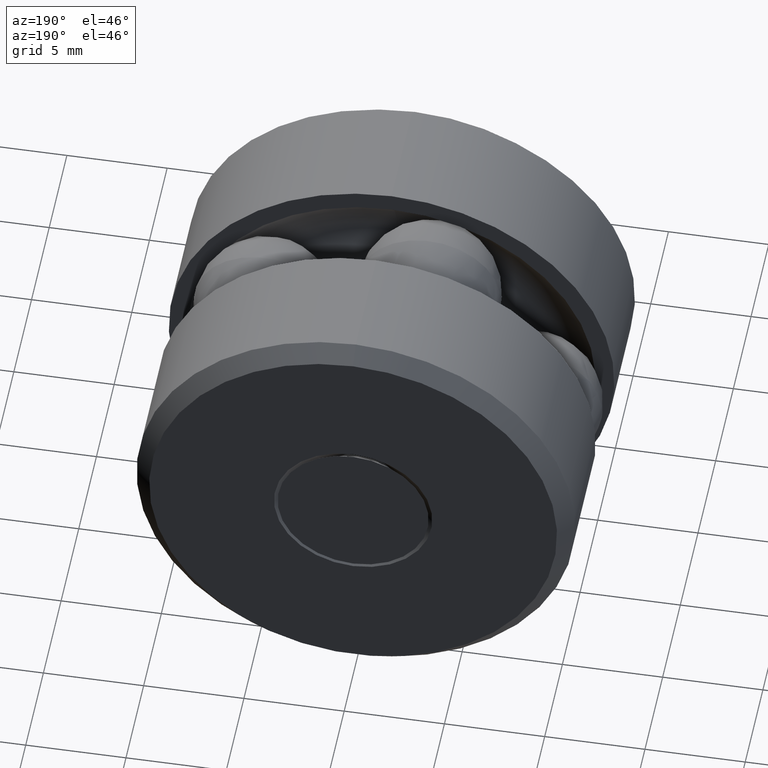
[diagram: clean part render]
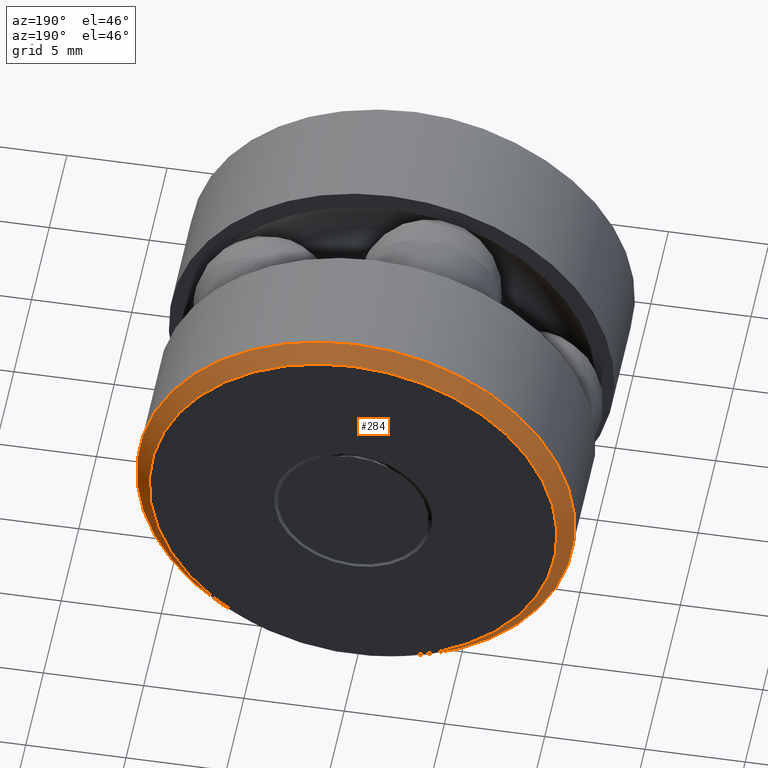
[diagram: same view with one face highlighted and labeled with its STEP entity id]
A machine part, auxiliary view. The second image highlights one B-rep face of the part: STEP entity #284.
In plain terms, the highlighted conical surface has half-angle 45 deg.
Its self-contained STEP definition (entity closure, byte-faithful):
#33 = CARTESIAN_POINT ( 'NONE',  ( 0.0000000000000000000, 0.6574999999999996400, 0.0000000000000000000 ) ) ;
#38 = FACE_OUTER_BOUND ( 'NONE', #103, .T. ) ;
#49 = ORIENTED_EDGE ( 'NONE', *, *, #392, .T. ) ;
#94 = EDGE_LOOP ( 'NONE', ( #455 ) ) ;
#103 = EDGE_LOOP ( 'NONE', ( #49 ) ) ;
#106 = AXIS2_PLACEMENT_3D ( 'NONE', #33, #213, #322 ) ;
#213 = DIRECTION ( 'NONE',  ( -0.0000000000000000000, 1.000000000000000000, -0.0000000000000000000 ) ) ;
#228 = DIRECTION ( 'NONE',  ( 0.0000000000000000000, 0.0000000000000000000, 1.000000000000000000 ) ) ;
#229 = DIRECTION ( 'NONE',  ( -0.0000000000000000000, 1.000000000000000000, -0.0000000000000000000 ) ) ;
#231 = CARTESIAN_POINT ( 'NONE',  ( 0.0000000000000000000, 0.6875000000000000000, 0.0000000000000000000 ) ) ;
#248 = EDGE_CURVE ( 'NONE', #282, #282, #479, .T. ) ;
#253 = DIRECTION ( 'NONE',  ( 0.0000000000000000000, -1.000000000000000000, 0.0000000000000000000 ) ) ;
#266 = VERTEX_POINT ( 'NONE', #327 ) ;
#278 = CARTESIAN_POINT ( 'NONE',  ( 0.0000000000000000000, 0.6875000000000000000, 0.0000000000000000000 ) ) ;
#279 = DIRECTION ( 'NONE',  ( 0.0000000000000000000, 0.0000000000000000000, -1.000000000000000000 ) ) ;
#282 = VERTEX_POINT ( 'NONE', #510 ) ;
#284 = ADVANCED_FACE ( 'NONE', ( #38, #366 ), #348, .T. ) ;
#322 = DIRECTION ( 'NONE',  ( 0.0000000000000000000, 0.0000000000000000000, 1.000000000000000000 ) ) ;
#327 = CARTESIAN_POINT ( 'NONE',  ( 0.0000000000000000000, 0.6574999999999996400, 0.4304999999999999400 ) ) ;
#341 = AXIS2_PLACEMENT_3D ( 'NONE', #231, #229, #228 ) ;
#348 = CONICAL_SURFACE ( 'NONE', #399, 0.4005000000000000200, 0.7853981633974415100 ) ;
#366 = FACE_BOUND ( 'NONE', #94, .T. ) ;
#392 = EDGE_CURVE ( 'NONE', #266, #266, #530, .T. ) ;
#399 = AXIS2_PLACEMENT_3D ( 'NONE', #278, #253, #279 ) ;
#455 = ORIENTED_EDGE ( 'NONE', *, *, #248, .F. ) ;
#479 = CIRCLE ( 'NONE', #341, 0.4005000000000000200 ) ;
#510 = CARTESIAN_POINT ( 'NONE',  ( 0.0000000000000000000, 0.6875000000000000000, 0.4005000000000000200 ) ) ;
#530 = CIRCLE ( 'NONE', #106, 0.4304999999999999400 ) ;